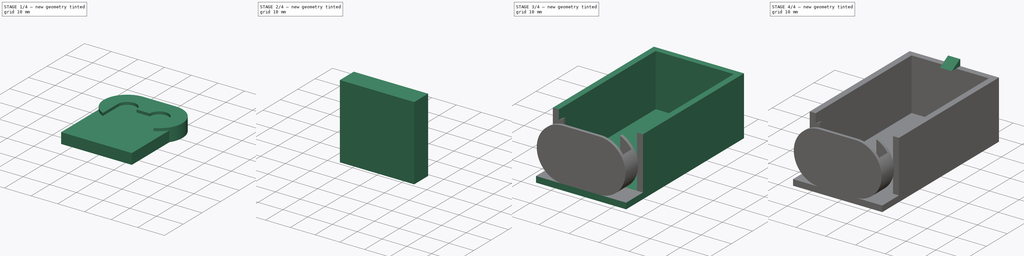
[diagram: build sequence overview — one tinted view per stage of 4, left to right]
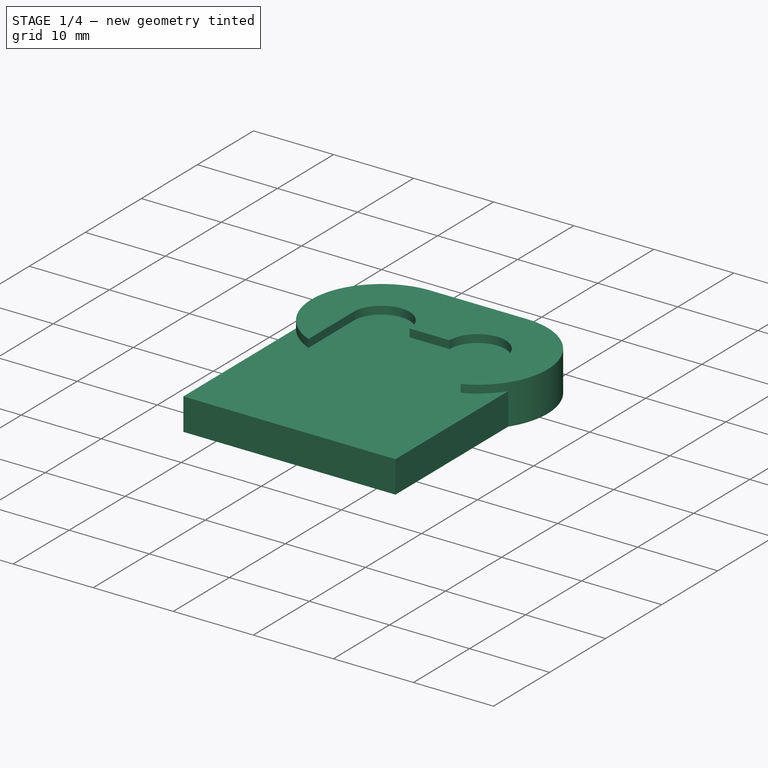
[diagram: stage 1 of 4 — iso view after this stage's code; geometry added in this stage tinted green]
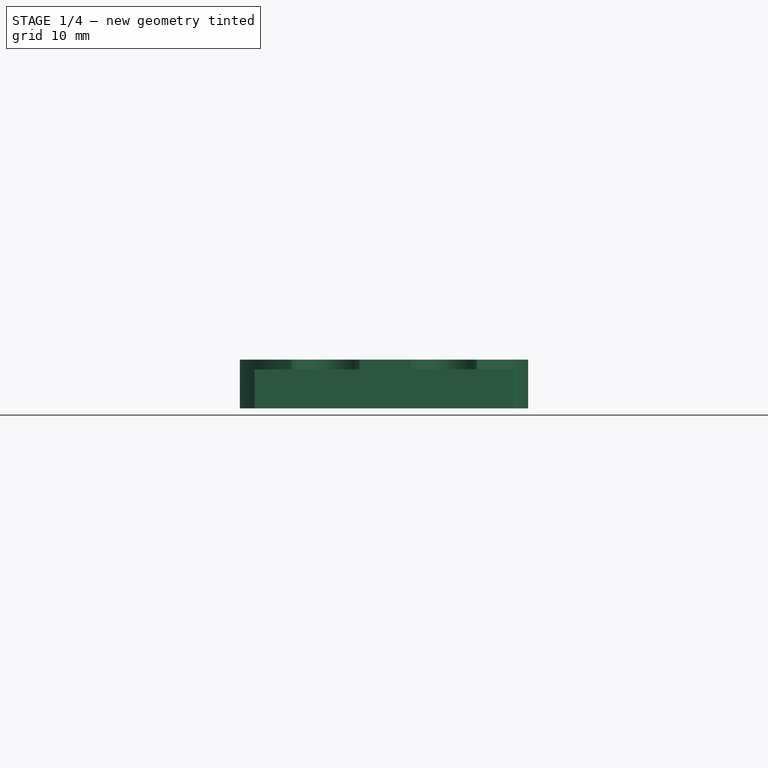
[diagram: stage 1 of 4 — front view after this stage's code; geometry added in this stage tinted green]
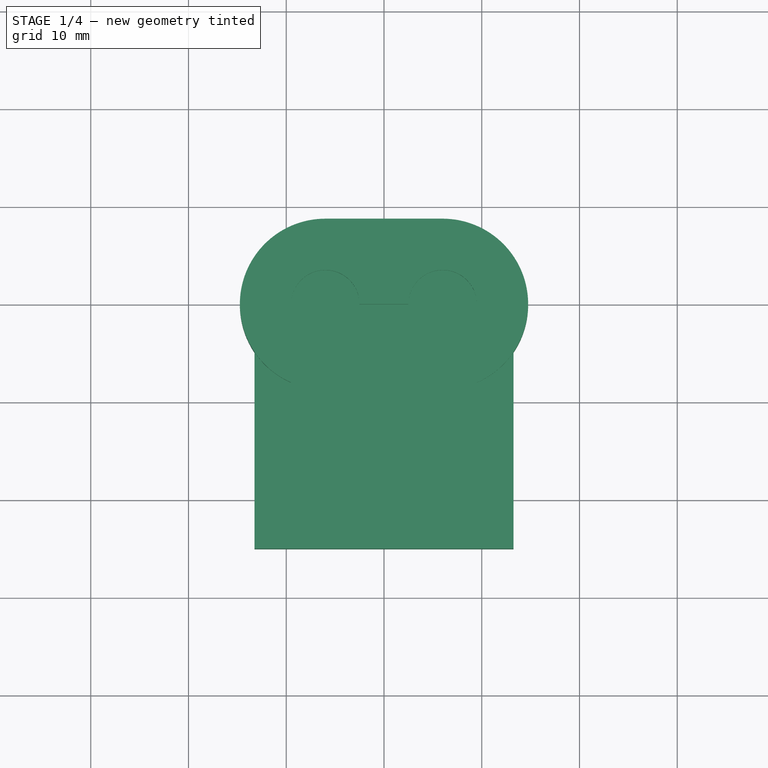
[diagram: stage 1 of 4 — top view after this stage's code; geometry added in this stage tinted green]
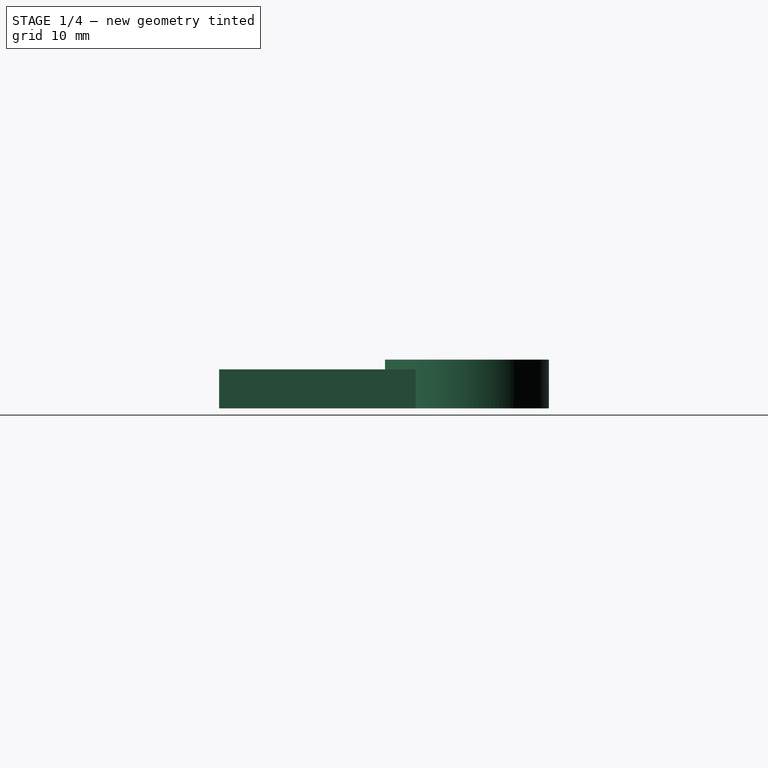
[diagram: stage 1 of 4 — right view after this stage's code; geometry added in this stage tinted green]
FCSTD DOCUMENT  (FreeCAD 1.0R39285 (Git))
Label: 9VBatteryHolder
License: All rights reserved
LicenseURL: https://en.wikipedia.org/wiki/All_rights_reserved
objects: Sketcher::SketchObject×4, Part::Extrusion×4, Part::Box×3, Part::Cut×3, Part::MultiFuse×3
note: 21 computed .brp shape members not serialized (recipe doc carries the construction recipe); baked Part::Feature solids carry a one-line shape summary decoded from their .brp

FEATURE [Sketcher::SketchObject] Sketch
  ArcFitTolerance = 1e-06
  FullyConstrained = true
  MakeInternals = false
  sketch-geometry (8):
    g0: LineSegment StartX=-6 StartY=8.75 StartZ=0 EndX=6 EndY=8.75 EndZ=0
    g1: ArcOfCircle CenterX=-6 CenterY=0 CenterZ=0 NormalX=0 NormalY=0 NormalZ=1 AngleXU=0 Radius=3.5 StartAngle=0 EndAngle=3.14159
    g2: ArcOfCircle CenterX=-6 CenterY=0 CenterZ=0 NormalX=0 NormalY=0 NormalZ=1 AngleXU=0 Radius=8.75 StartAngle=1.5708 EndAngle=4.30087
    g3: ArcOfCircle CenterX=6 CenterY=0 CenterZ=0 NormalX=0 NormalY=0 NormalZ=1 AngleXU=0 Radius=3.5 StartAngle=6.28318 EndAngle=9.42478
    g4: ArcOfCircle CenterX=6 CenterY=0 CenterZ=0 NormalX=0 NormalY=0 NormalZ=1 AngleXU=0 Radius=8.75 StartAngle=5.12391 EndAngle=7.85398
    g5: LineSegment StartX=9.5 StartY=-2.67306e-06 StartZ=0 EndX=9.5 EndY=-8.01951 EndZ=0
    g6: LineSegment StartX=-9.5 StartY=9.19011e-06 StartZ=0 EndX=-9.5 EndY=-8.01951 EndZ=0
    g7: LineSegment StartX=-2.5 StartY=0 StartZ=0 EndX=2.5 EndY=1.3e-15 EndZ=0
  constraints (23):
    c: Symmetric(g1,g3,g-2)
    c: PointOnObject(g1,g-1)
    c: Coincident(g2,g1)
    c: Coincident(g2,g0)
    c: Coincident(g4,g3)
    c: Coincident(g4,g0)
    c: Symmetric(g3,g1,g-2)
    c: DistanceX(g1,g3) = 12
    c: Coincident(g5,g3)
    c: Coincident(g5,g4)
    c: Vertical(g5)
    c: DistanceX(g2,g4) = 19
    c: Distance(g1,g1) = 3.5
    c: Distance(g3,g4) = 8.75
    c: Symmetric(g0,g0,g-2)
    c: Coincident(g6,g1)
    c: Coincident(g6,g2)
    c: Horizontal(g4,g2)
    c: Coincident(g7,g1)
    c: Coincident(g7,g3)
    c: PointOnObject(g3,g-1)
    c: Vertical(g1,g2)
    c: DistanceX(g0,g0) = 12
FEATURE [Part::Extrusion] Extrude  label="Frame"
  Base = -> Sketch
  Dir = (0,0,1)
  DirMode = 2
  FaceMakerClass = Part::FaceMakerBullseye
  FaceMakerMode = 3
  LengthFwd = 5
  LengthRev = 0
  Solid = true
  Symmetric = false
FEATURE [Sketcher::SketchObject] Sketch001
  ArcFitTolerance = 1e-06
  FullyConstrained = true
  MakeInternals = false
  sketch-geometry (6):
    g0: ArcOfCircle CenterX=-6 CenterY=7.2e-15 CenterZ=0 NormalX=0 NormalY=0 NormalZ=1 AngleXU=0 Radius=7.25 StartAngle=1.5708 EndAngle=3.14159
    g1: ArcOfCircle CenterX=6 CenterY=0 CenterZ=0 NormalX=0 NormalY=0 NormalZ=1 AngleXU=0 Radius=7.25 StartAngle=0 EndAngle=1.5708
    g2: LineSegment StartX=-6 StartY=7.25 StartZ=0 EndX=6 EndY=7.25 EndZ=0
    g3: LineSegment StartX=-13.25 StartY=7.2e-15 StartZ=0 EndX=-13.25 EndY=-25 EndZ=0
    g4: LineSegment StartX=-13.25 StartY=-25 StartZ=0 EndX=13.25 EndY=-25 EndZ=0
    g5: LineSegment StartX=13.25 StartY=-25 StartZ=0 EndX=13.25 EndY=0 EndZ=0
  constraints (18):
    c: Angle(g0) = 1.5708
    c: PointOnObject(g0,g-1)
    c: Angle(g1) = 1.5708
    c: PointOnObject(g1,g-1)
    c: Horizontal(g0,g0)
    c: Symmetric(g0,g1,g-2)
    c: Coincident(g2,g0)
    c: Coincident(g2,g1)
    c: Horizontal(g2)
    c: DistanceX(g0,g1) = 12
    c: Distance(g3) = 25
    c: Tangent(g3,g0) = -1.5708
    c: Coincident(g4,g3)
    c: Horizontal(g4)
    c: Coincident(g5,g4)
    c: Coincident(g5,g1)
    c: Vertical(g5)
    c: DistanceY(g1,g1) = 7.25
FEATURE [Part::Extrusion] Extrude001  label="CutOut"
  Base = -> Sketch001
  Dir = (0,0,1)
  DirMode = 2
  FaceMakerClass = Part::FaceMakerBullseye
  FaceMakerMode = 3
  LengthFwd = 4
  LengthRev = 0
  Solid = true
  Symmetric = false
FEATURE [Sketcher::SketchObject] Sketch002
  ArcFitTolerance = 1e-06
  FullyConstrained = true
  MakeInternals = false
  sketch-geometry (4):
    g0: ArcOfCircle CenterX=-6 CenterY=0 CenterZ=0 NormalX=0 NormalY=0 NormalZ=1 AngleXU=0 Radius=8.75 StartAngle=1.5708 EndAngle=4.71239
    g1: ArcOfCircle CenterX=6 CenterY=0 CenterZ=0 NormalX=0 NormalY=0 NormalZ=1 AngleXU=0 Radius=8.75 StartAngle=4.71239 EndAngle=7.85398
    g2: LineSegment StartX=-6 StartY=8.75 StartZ=0 EndX=6 EndY=8.75 EndZ=0
    g3: LineSegment StartX=-6 StartY=-8.75 StartZ=0 EndX=6 EndY=-8.75 EndZ=0
  constraints (9):
    c: Tangent(g0,g2) = 1.5708
    c: Tangent(g0,g3) = -1.5708
    c: Tangent(g1,g2) = 1.5708
    c: Tangent(g1,g3) = -1.5708
    c: Equal(g0,g1)
    c: Distance(g0,g1) = 12
    c: Radius(g0) = 8.75
    c: PointOnObject(g0,g-1)
    c: Symmetric(g0,g1,g-2)
FEATURE [Part::Extrusion] Extrude002
  Base = -> Sketch002
  Dir = (0,0,1)
  DirMode = 2
  FaceMakerClass = Part::FaceMakerBullseye
  FaceMakerMode = 3
  LengthFwd = 1
  LengthRev = 0
  Solid = true
  Symmetric = false
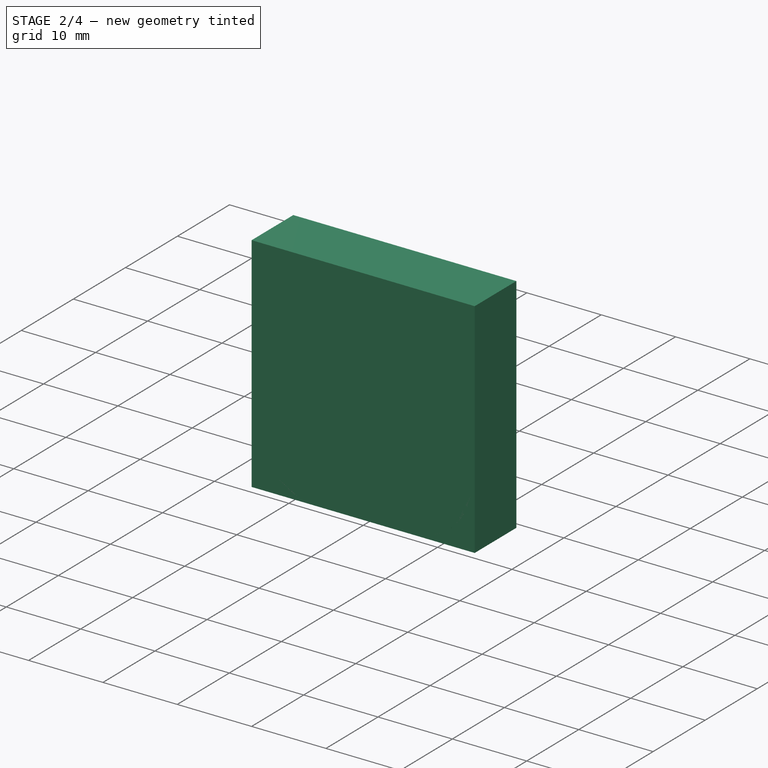
[diagram: stage 2 of 4 — iso view after this stage's code; geometry added in this stage tinted green]
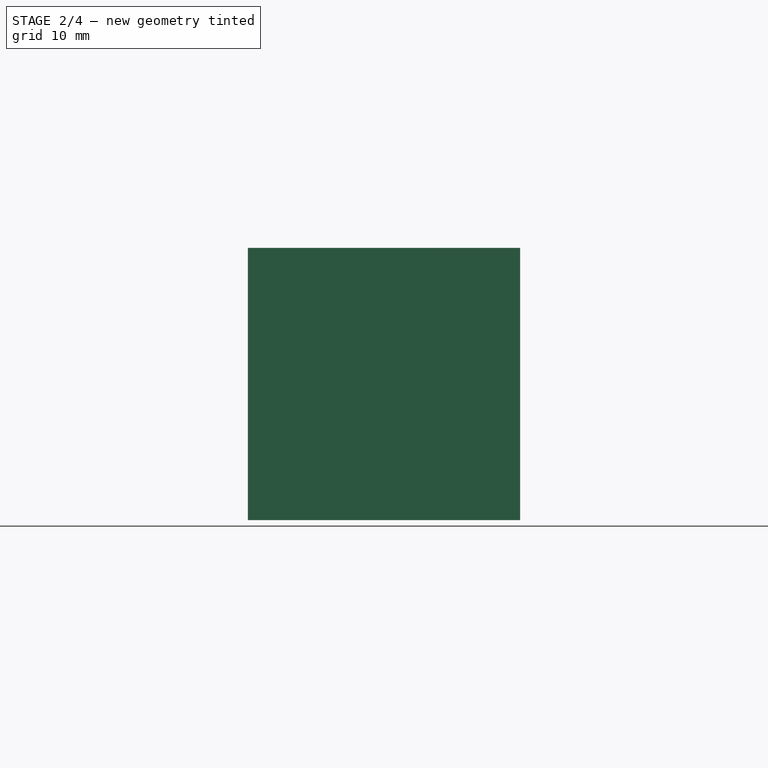
[diagram: stage 2 of 4 — front view after this stage's code; geometry added in this stage tinted green]
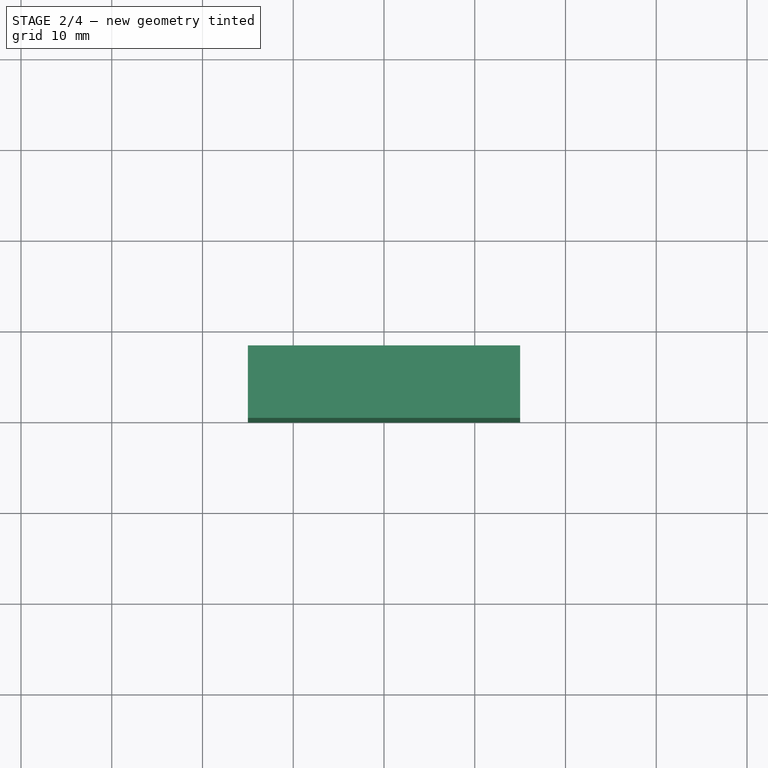
[diagram: stage 2 of 4 — top view after this stage's code; geometry added in this stage tinted green]
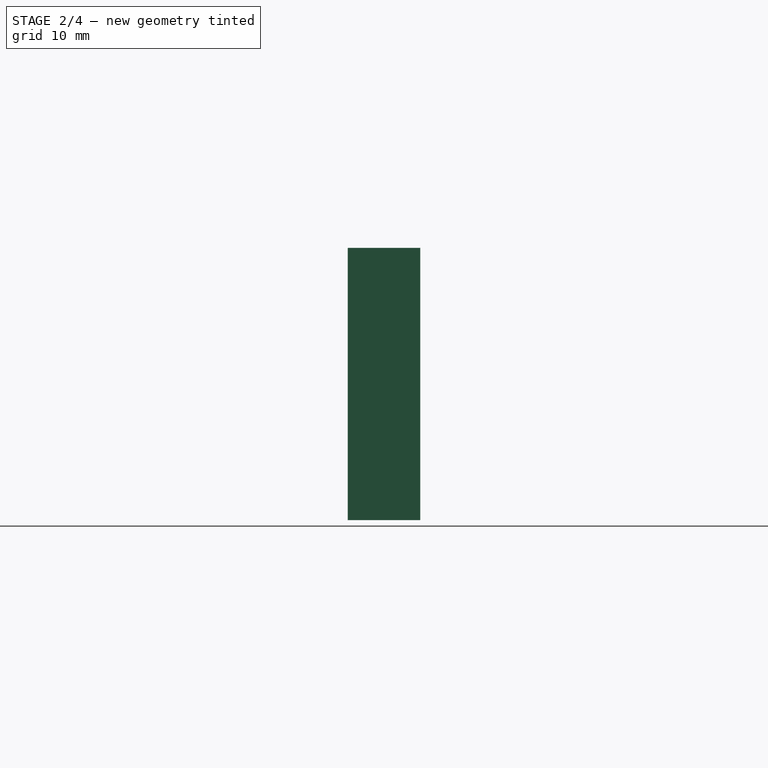
[diagram: stage 2 of 4 — right view after this stage's code; geometry added in this stage tinted green]
FEATURE [Part::Box] Box009  label="Cube005"
  AttacherType = Attacher::AttachEngine3D
  Height = 30
  Length = 30
  Placement = pos=(-15,0,0) rot=(0,0,1;0rad)
  Width = 8
FEATURE [Part::Cut] Cut019
  Base = -> Extrude
  Placement = pos=(0,0,1) rot=(0,0,1;0rad)
  Tool = -> Extrude001
FEATURE [Part::MultiFuse] Fusion009  label="Cable Holder"
  Placement = pos=(0,0,8.75) rot=(1,0,0;4.71239rad)
  Shapes = -> [Cut019,Extrude002]
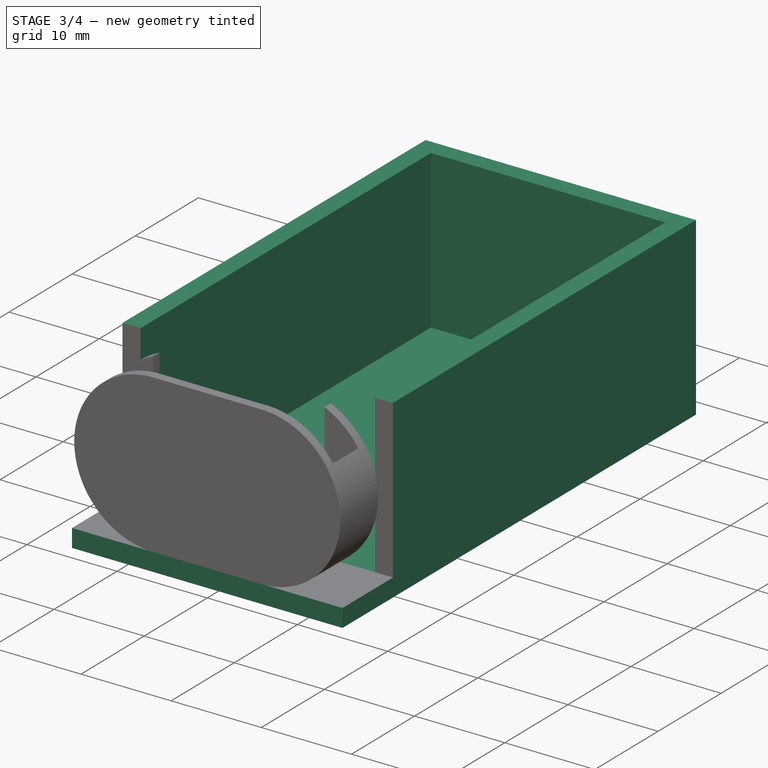
[diagram: stage 3 of 4 — iso view after this stage's code; geometry added in this stage tinted green]
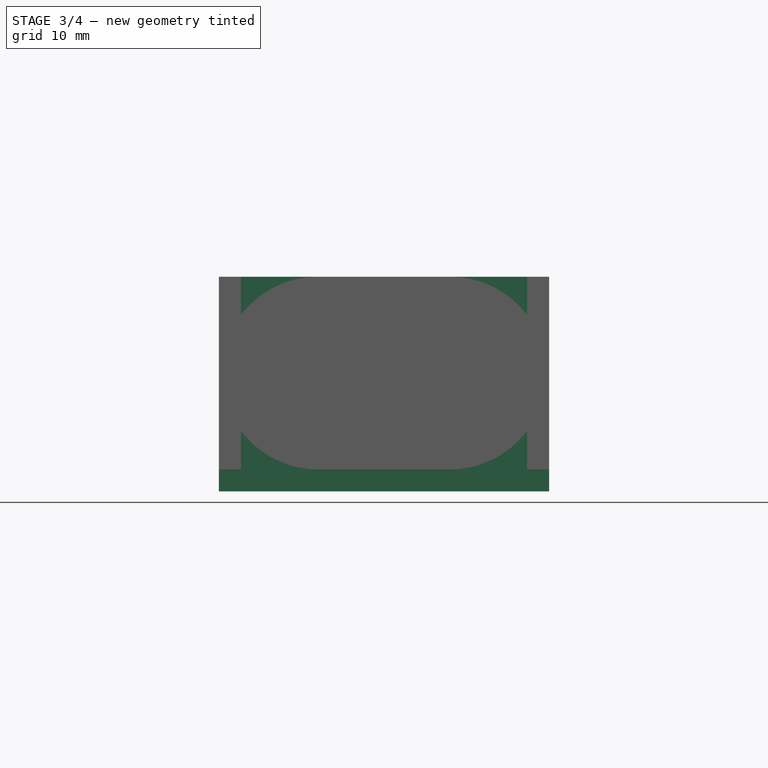
[diagram: stage 3 of 4 — front view after this stage's code; geometry added in this stage tinted green]
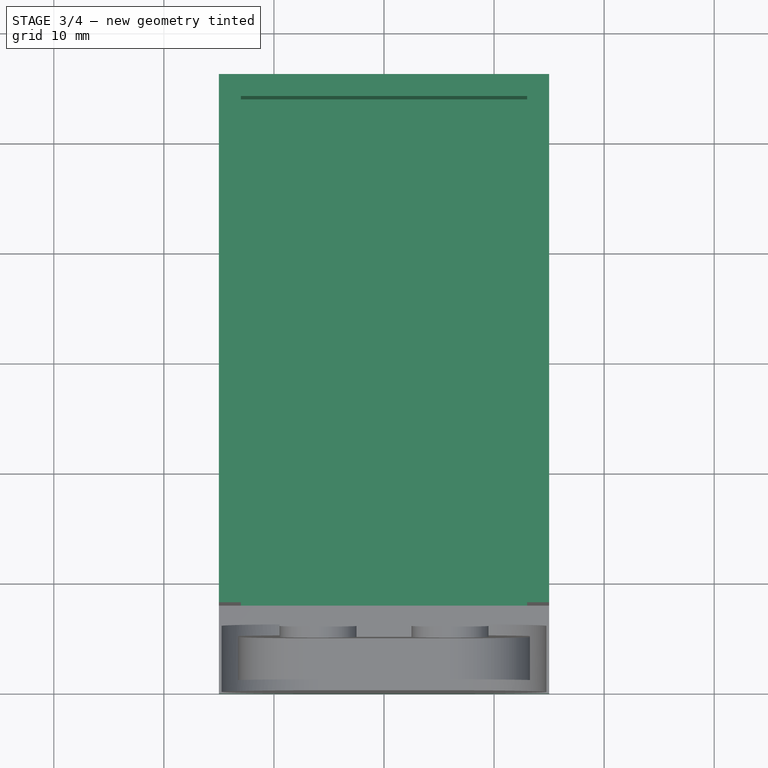
[diagram: stage 3 of 4 — top view after this stage's code; geometry added in this stage tinted green]
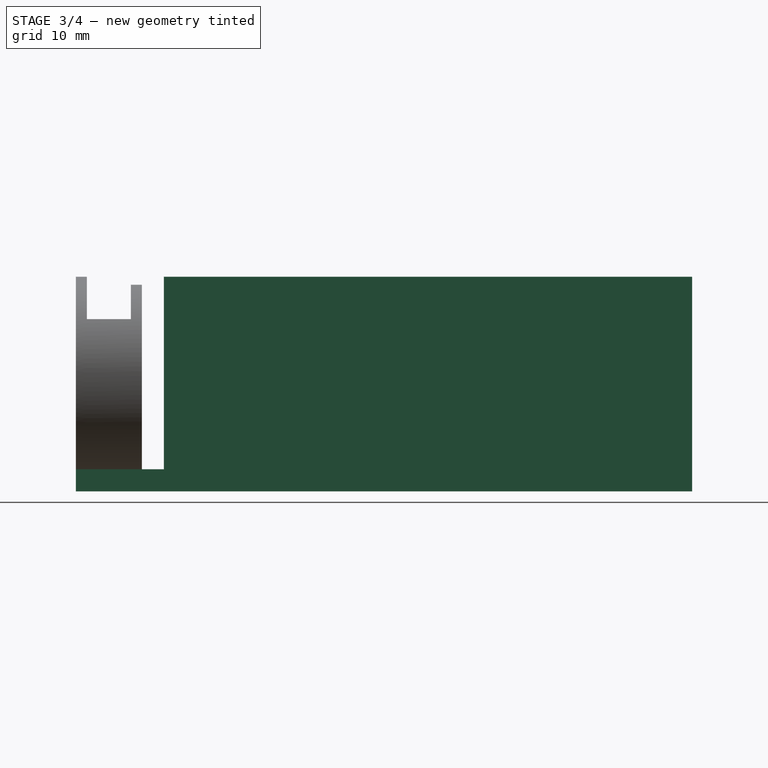
[diagram: stage 3 of 4 — right view after this stage's code; geometry added in this stage tinted green]
FEATURE [Part::Box] Box007  label="Cube003"
  AttacherType = Attacher::AttachEngine3D
  Height = 19.5
  Length = 30
  Placement = pos=(-15,0,-2) rot=(0,0,1;0rad)
  Width = 56
FEATURE [Part::Box] Box008  label="Cube004"
  AttacherType = Attacher::AttachEngine3D
  Height = 17.5
  Length = 26
  Placement = pos=(-13,8,0) rot=(0,0,1;0rad)
  Width = 46
FEATURE [Part::Cut] Cut001  label="Battery Box"
  Base = -> Box007
  Tool = -> Box008
FEATURE [Part::Cut] Cut002  label="Battery Box With Floor"
  Base = -> Cut001
  Tool = -> Box009
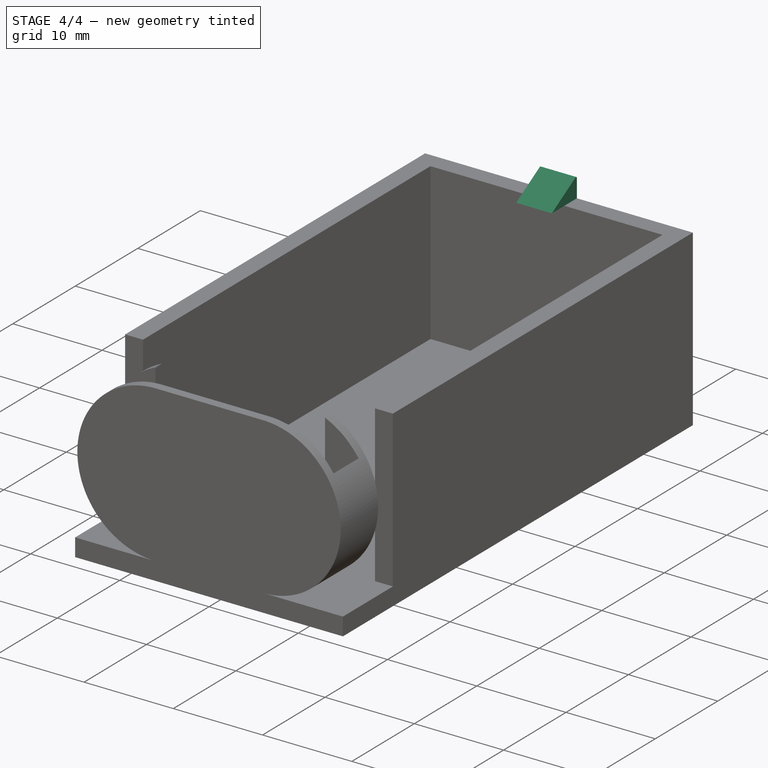
[diagram: stage 4 of 4 — iso view after this stage's code; geometry added in this stage tinted green]
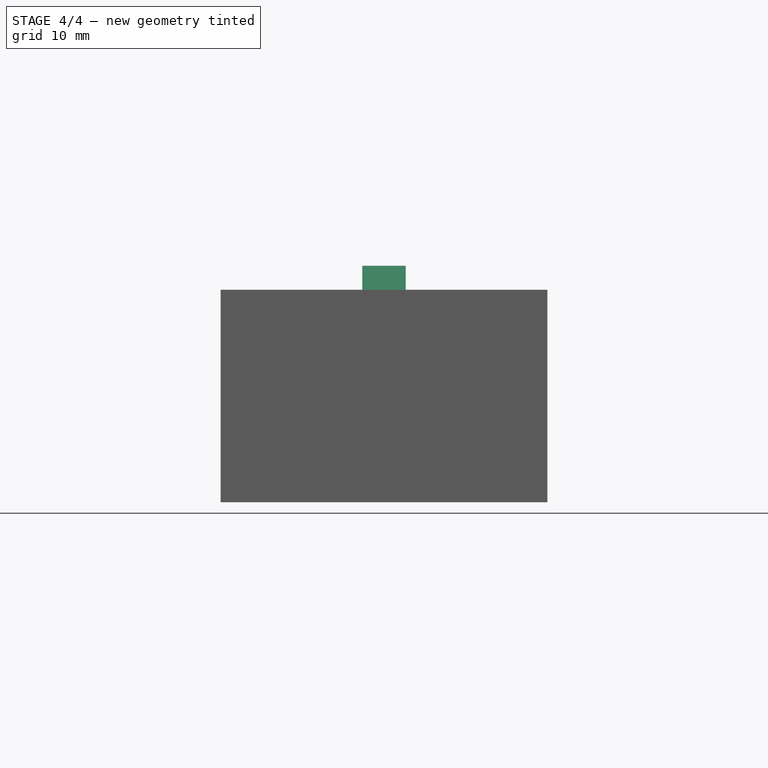
[diagram: stage 4 of 4 — front view after this stage's code; geometry added in this stage tinted green]
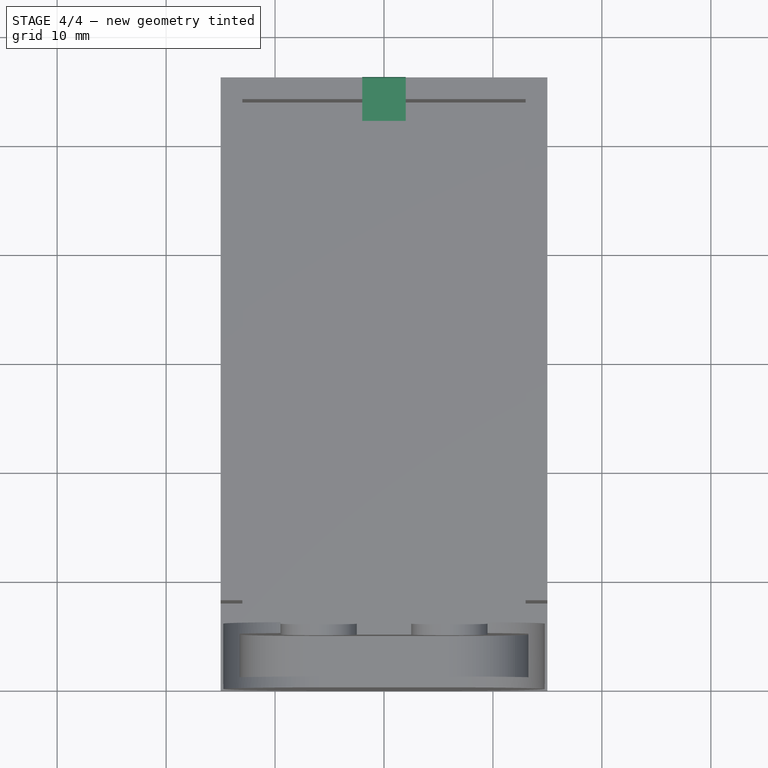
[diagram: stage 4 of 4 — top view after this stage's code; geometry added in this stage tinted green]
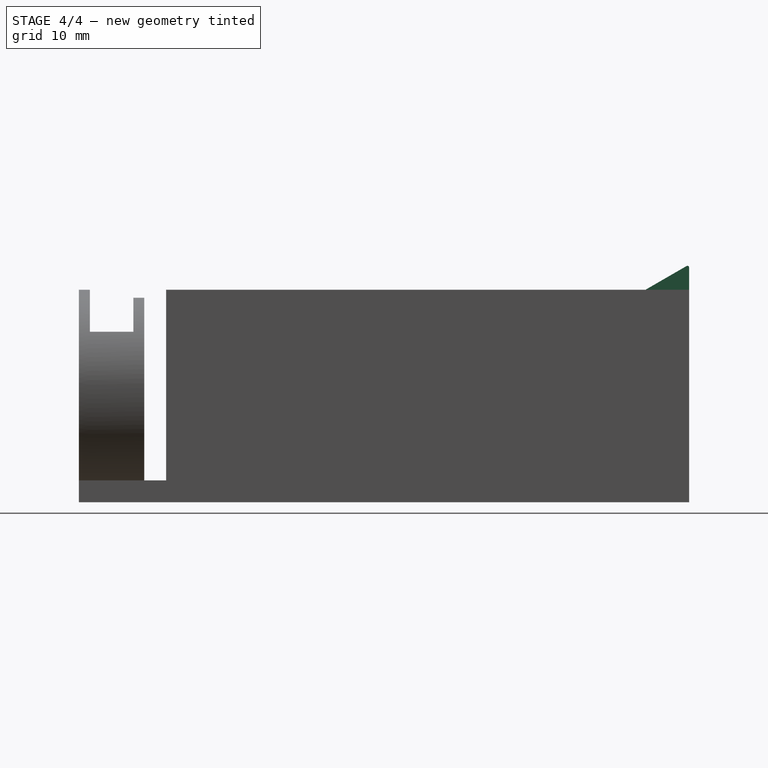
[diagram: stage 4 of 4 — right view after this stage's code; geometry added in this stage tinted green]
FEATURE [Sketcher::SketchObject] Sketch005
  ArcFitTolerance = 1e-06
  FullyConstrained = true
  MakeInternals = false
  Placement = pos=(0,0,0) rot=(0.57735,0.57735,0.57735;2.0944rad)
  sketch-geometry (4):
    g0: LineSegment StartX=0 StartY=0 StartZ=0 EndX=3.775 EndY=2.1795 EndZ=0
    g1: LineSegment StartX=4 StartY=0 StartZ=0 EndX=0 EndY=0 EndZ=0
    g2: LineSegment StartX=4 StartY=2.04959 StartZ=0 EndX=4 EndY=0 EndZ=0
    g3: ArcOfCircle CenterX=3.85 CenterY=2.04959 CenterZ=0 NormalX=0 NormalY=0 NormalZ=1 AngleXU=0 Radius=0.15 StartAngle=0 EndAngle=2.0944
  constraints (12):
    c: PointOnObject(g1,g-1)
    c: Vertical(g2)
    c: Angle(g1,g0) = 0.523599
    c: DistanceX(g1,g1) = 4
    c: Distance(g3,g3) = 0.15
    c: Coincident(g3,g0)
    c: Coincident(g2,g3)
    c: Coincident(g2,g1)
    c: Coincident(g1,g0)
    c: Coincident(g-1,g0)
    c: Angle(g3) = 2.0944
    c: Horizontal(g2,g3)
FEATURE [Part::Extrusion] Extrude005  label="Clip"
  Base = -> Sketch005
  Dir = (1,0,0)
  DirMode = 2
  FaceMakerClass = Part::FaceMakerBullseye
  FaceMakerMode = 3
  LengthFwd = 4
  LengthRev = 0
  Placement = pos=(-2,52,17.5) rot=(0,0,1;0rad)
  Solid = true
  Symmetric = false
FEATURE [Part::MultiFuse] Fusion001  label="Box With Clip"
  Shapes = -> [Extrude005,Cut002]
FEATURE [Part::MultiFuse] Fusion004  label="Battery Holder"
  Shapes = -> [Fusion001,Fusion009]
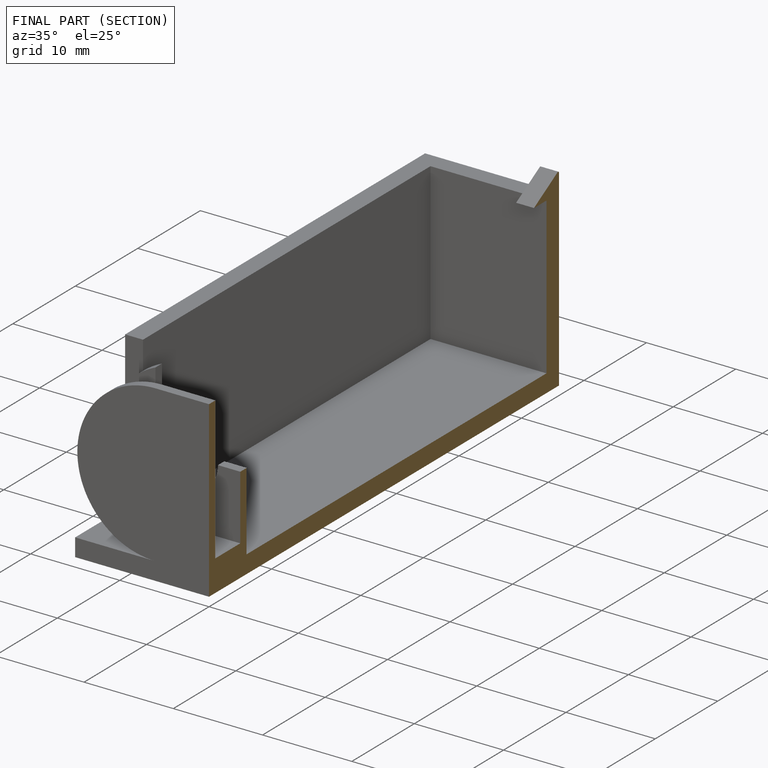
[diagram: finished part — half-section view (interior)]
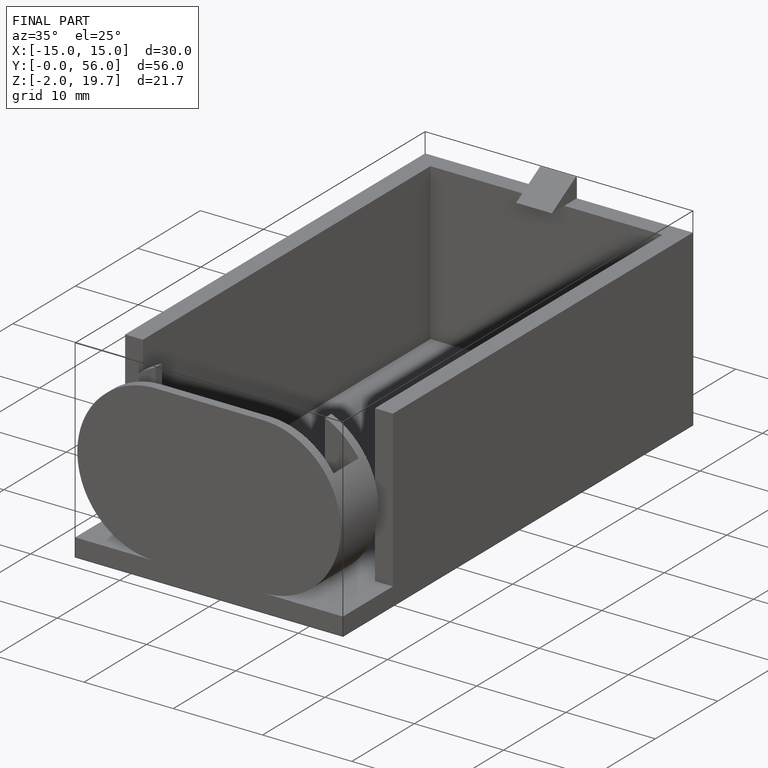
[diagram: finished part — iso view with bounding-box wireframe]
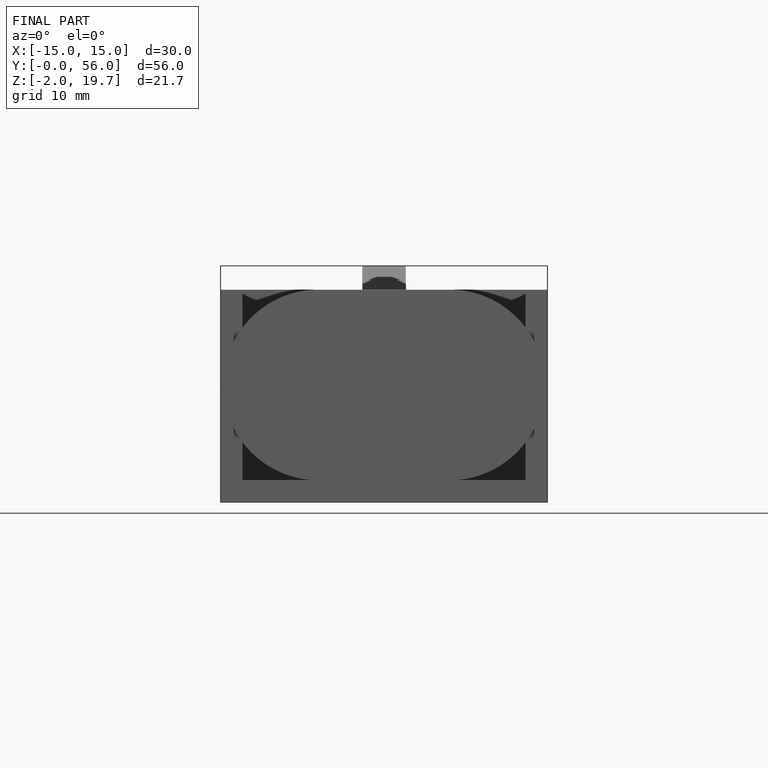
[diagram: finished part — front view with bounding-box wireframe]
